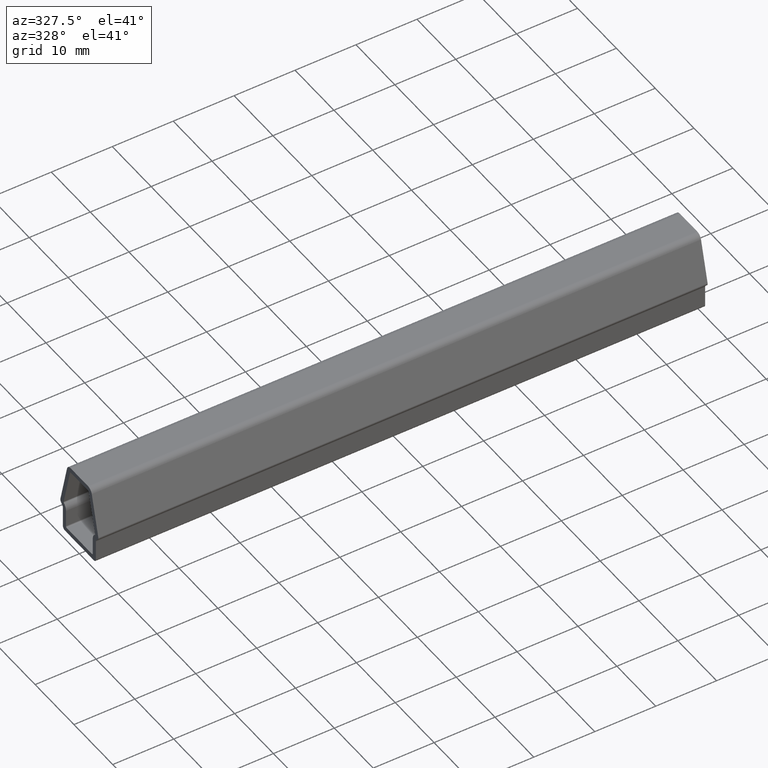
[diagram: clean part render]
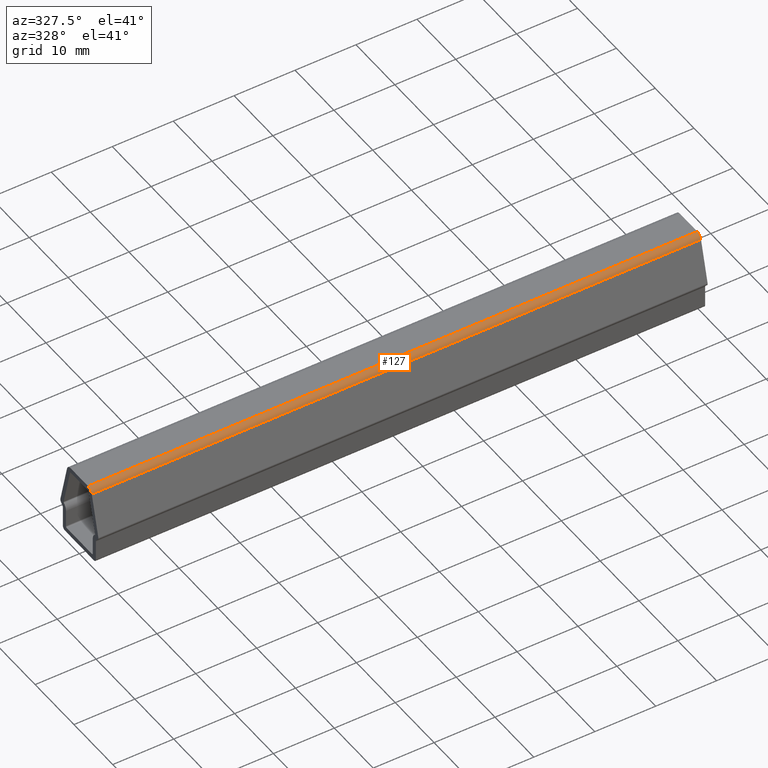
[diagram: same view with one face highlighted and labeled with its STEP entity id]
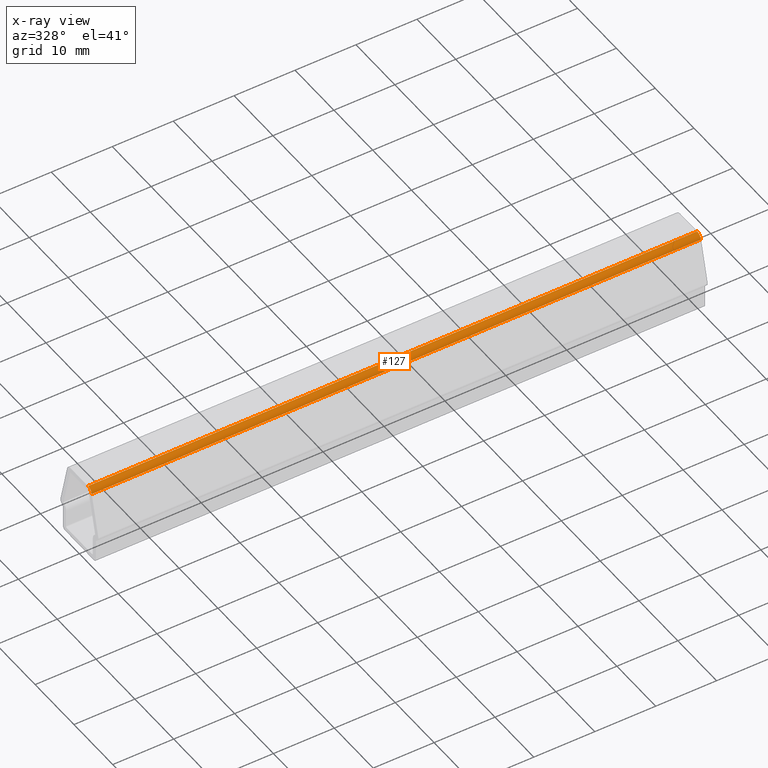
[diagram: x-ray of the same camera — body ghosted, the highlighted face saturated]
A machine part, auxiliary view. The second image highlights one B-rep face of the part: STEP entity #127.
The next image is the same camera in x-ray: the body ghosted, the highlighted face saturated — about 0% of this face is hidden behind the body in this view.
In plain terms, the highlighted cylindrical surface (edge-blend (fillet) strip) has radius 1 mm, axis along (-1, 0, 0).
Its self-contained STEP definition (entity closure, byte-faithful):
#86=CARTESIAN_POINT('',(100.000000009999990,-2.219997726038471,11.499999999999993));
#87=DIRECTION('',(-1.0,0.0,0.0));
#88=DIRECTION('',(0.0,-1.0,6.123234E-017));
#89=AXIS2_PLACEMENT_3D('',#86,#87,#88);
#90=CYLINDRICAL_SURFACE('',#89,1.000000000000001);
#91=CARTESIAN_POINT('',(0.0,-2.219997726038471,12.499999999999993));
#92=VERTEX_POINT('',#91);
#93=CARTESIAN_POINT('',(0.0,-3.189906397565096,11.743469030674213));
#94=VERTEX_POINT('',#93);
#95=CARTESIAN_POINT('',(0.0,-2.219997726038471,11.499999999999993));
#96=DIRECTION('',(1.0,0.0,0.0));
#97=DIRECTION('',(0.0,-1.0,6.123234E-017));
#98=AXIS2_PLACEMENT_3D('',#95,#96,#97);
#99=CIRCLE('',#98,1.000000000000001);
#100=EDGE_CURVE('',#92,#94,#99,.T.);
#101=ORIENTED_EDGE('',*,*,#100,.T.);
#102=CARTESIAN_POINT('',(100.0,-3.189906397565096,11.743469030674213));
#103=VERTEX_POINT('',#102);
#104=CARTESIAN_POINT('',(100.0,-3.189906397565096,11.743469030674213));
#105=DIRECTION('',(-1.0,0.0,0.0));
#106=VECTOR('',#105,100.0);
#107=LINE('',#104,#106);
#108=EDGE_CURVE('',#103,#94,#107,.T.);
#109=ORIENTED_EDGE('',*,*,#108,.F.);
#110=CARTESIAN_POINT('',(100.0,-2.219997726038471,12.499999999999993));
#111=VERTEX_POINT('',#110);
#112=CARTESIAN_POINT('',(100.0,-2.219997726038471,11.499999999999993));
#113=DIRECTION('',(1.0,0.0,0.0));
#114=DIRECTION('',(0.0,-1.0,6.123234E-017));
#115=AXIS2_PLACEMENT_3D('',#112,#113,#114);
#116=CIRCLE('',#115,1.000000000000001);
#117=EDGE_CURVE('',#111,#103,#116,.T.);
#118=ORIENTED_EDGE('',*,*,#117,.F.);
#119=CARTESIAN_POINT('',(100.0,-2.219997726038471,12.499999999999993));
#120=DIRECTION('',(-1.0,0.0,0.0));
#121=VECTOR('',#120,100.0);
#122=LINE('',#119,#121);
#123=EDGE_CURVE('',#111,#92,#122,.T.);
#124=ORIENTED_EDGE('',*,*,#123,.T.);
#125=EDGE_LOOP('',(#101,#109,#118,#124));
#126=FACE_OUTER_BOUND('',#125,.T.);
#127=ADVANCED_FACE('',(#126),#90,.T.);